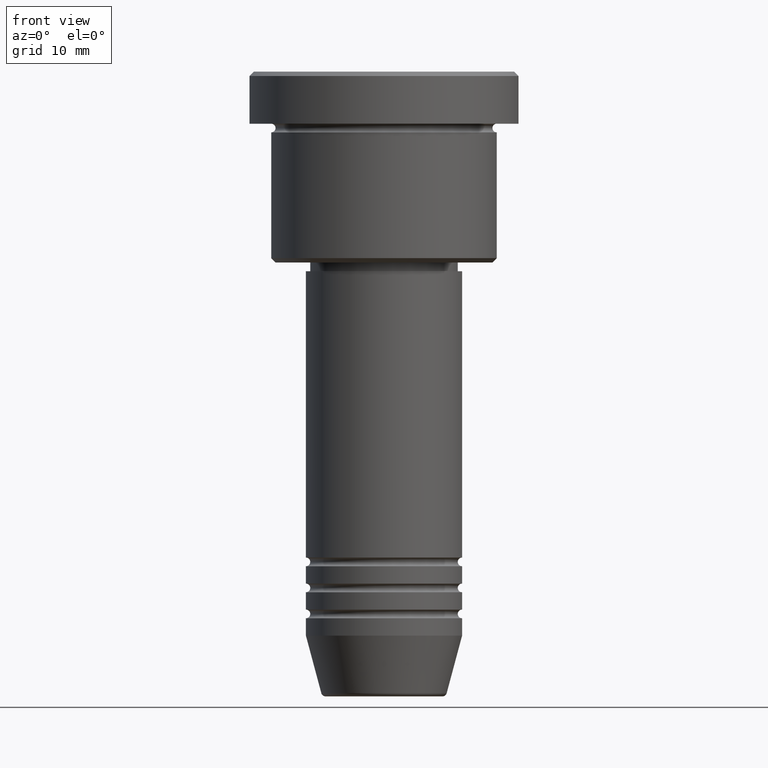
[diagram: clean part render]
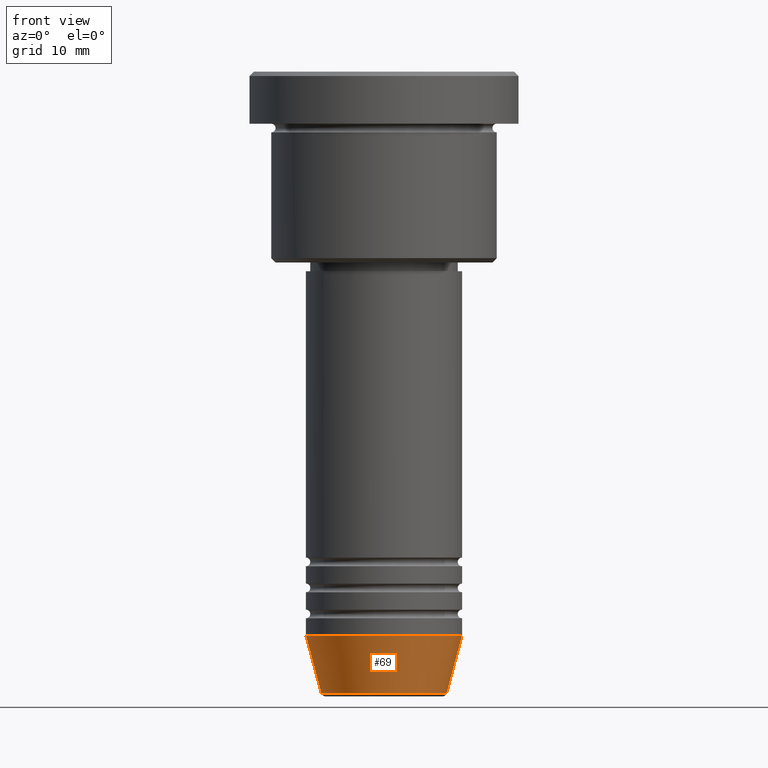
[diagram: same view with one face highlighted and labeled with its STEP entity id]
A machine part, front view. The second image highlights one B-rep face of the part: STEP entity #69.
In plain terms, the highlighted conical surface has half-angle 15 deg.
Its self-contained STEP definition (entity closure, byte-faithful):
#15 = EDGE_LOOP ( 'NONE', ( #872, #1043, #452, #531 ) ) ;
#38 = CARTESIAN_POINT ( 'NONE',  ( -9.000000000000000000, 1.102182119232617714E-15, -65.00000000000000000 ) ) ;
#69 = ADVANCED_FACE ( 'NONE', ( #737 ), #1005, .T. ) ;
#72 = VERTEX_POINT ( 'NONE', #810 ) ;
#220 = DIRECTION ( 'NONE',  ( -0.000000000000000000, -0.000000000000000000, 1.000000000000000000 ) ) ;
#282 = DIRECTION ( 'NONE',  ( -0.2588190451025213501, 3.169619151431772337E-17, 0.9659258262890680902 ) ) ;
#304 = CIRCLE ( 'NONE', #922, 7.223655072137188604 ) ;
#347 = CARTESIAN_POINT ( 'NONE',  ( -9.000000000000000000, 1.102182119232617714E-15, -65.00000000000000000 ) ) ;
#380 = EDGE_CURVE ( 'NONE', #759, #72, #1028, .T. ) ;
#397 = EDGE_CURVE ( 'NONE', #521, #416, #304, .T. ) ;
#409 = CARTESIAN_POINT ( 'NONE',  ( 0.000000000000000000, 0.000000000000000000, -71.62940952255127058 ) ) ;
#416 = VERTEX_POINT ( 'NONE', #653 ) ;
#452 = ORIENTED_EDGE ( 'NONE', *, *, #1114, .T. ) ;
#490 = LINE ( 'NONE', #38, #828 ) ;
#521 = VERTEX_POINT ( 'NONE', #590 ) ;
#531 = ORIENTED_EDGE ( 'NONE', *, *, #380, .F. ) ;
#581 = VECTOR ( 'NONE', #741, 1000.000000000000000 ) ;
#590 = CARTESIAN_POINT ( 'NONE',  ( -7.223655072137189492, 9.934123627281765110E-16, -71.62940952255127058 ) ) ;
#618 = DIRECTION ( 'NONE',  ( 1.000000000000000000, 0.000000000000000000, 0.000000000000000000 ) ) ;
#642 = CARTESIAN_POINT ( 'NONE',  ( 9.000000000000000000, 0.000000000000000000, -65.00000000000000000 ) ) ;
#653 = CARTESIAN_POINT ( 'NONE',  ( 7.223655072137188604, 0.000000000000000000, -71.62940952255127058 ) ) ;
#670 = CARTESIAN_POINT ( 'NONE',  ( 0.000000000000000000, 0.000000000000000000, -65.00000000000000000 ) ) ;
#676 = DIRECTION ( 'NONE',  ( 1.000000000000000000, 0.000000000000000000, 0.000000000000000000 ) ) ;
#709 = DIRECTION ( 'NONE',  ( -0.000000000000000000, -0.000000000000000000, 1.000000000000000000 ) ) ;
#737 = FACE_OUTER_BOUND ( 'NONE', #15, .T. ) ;
#741 = DIRECTION ( 'NONE',  ( 0.2588190451025213501, 0.000000000000000000, 0.9659258262890680902 ) ) ;
#743 = DIRECTION ( 'NONE',  ( -0.000000000000000000, -0.000000000000000000, 1.000000000000000000 ) ) ;
#759 = VERTEX_POINT ( 'NONE', #347 ) ;
#797 = CARTESIAN_POINT ( 'NONE',  ( 0.000000000000000000, 0.000000000000000000, -65.00000000000000000 ) ) ;
#810 = CARTESIAN_POINT ( 'NONE',  ( 9.000000000000000000, 0.000000000000000000, -65.00000000000000000 ) ) ;
#828 = VECTOR ( 'NONE', #282, 1000.000000000000000 ) ;
#857 = EDGE_CURVE ( 'NONE', #521, #759, #490, .T. ) ;
#872 = ORIENTED_EDGE ( 'NONE', *, *, #857, .F. ) ;
#922 = AXIS2_PLACEMENT_3D ( 'NONE', #409, #220, #676 ) ;
#1000 = LINE ( 'NONE', #642, #581 ) ;
#1005 = CONICAL_SURFACE ( 'NONE', #1006, 9.000000000000000000, 0.2617993877991500740 ) ;
#1006 = AXIS2_PLACEMENT_3D ( 'NONE', #797, #709, #618 ) ;
#1028 = CIRCLE ( 'NONE', #1146, 9.000000000000000000 ) ;
#1030 = DIRECTION ( 'NONE',  ( 1.000000000000000000, 0.000000000000000000, 0.000000000000000000 ) ) ;
#1043 = ORIENTED_EDGE ( 'NONE', *, *, #397, .T. ) ;
#1114 = EDGE_CURVE ( 'NONE', #416, #72, #1000, .T. ) ;
#1146 = AXIS2_PLACEMENT_3D ( 'NONE', #670, #743, #1030 ) ;